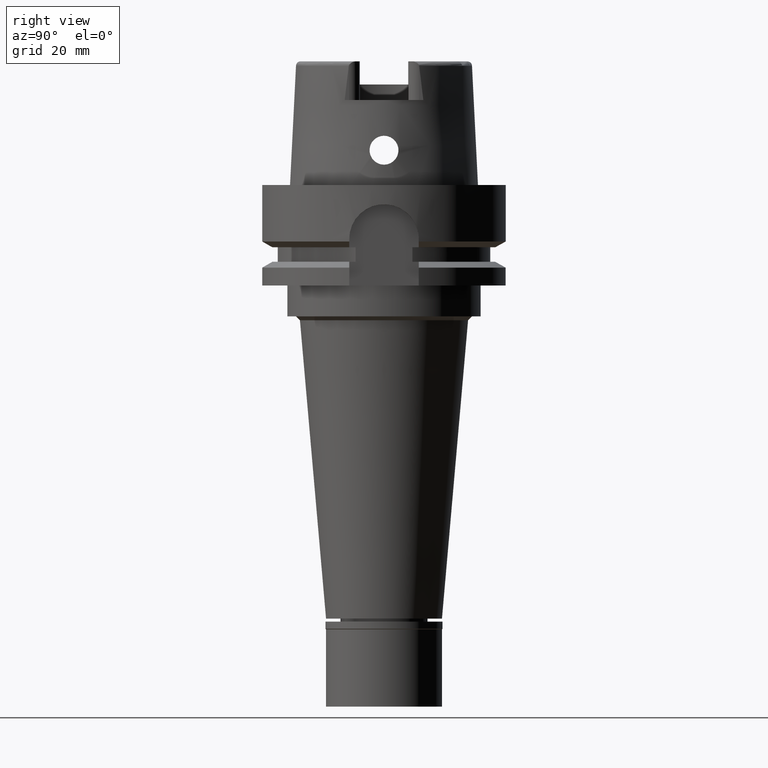
[diagram: clean part render]
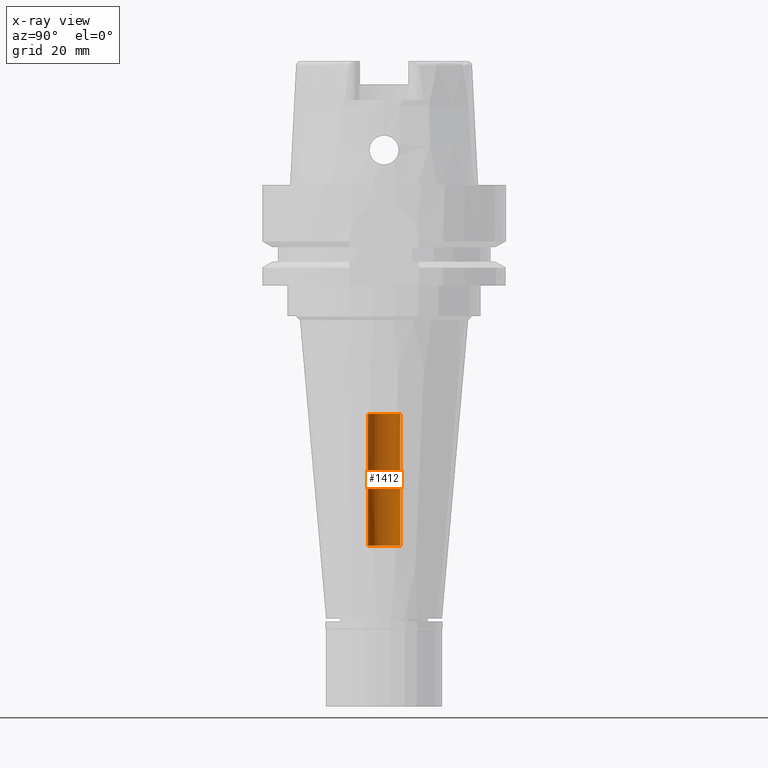
[diagram: x-ray — body ghosted, one internal face saturated and labeled with its STEP entity id]
A machine part, right view, then the same camera in x-ray: the body is ghosted and one INTERNAL B-rep face — a face not visible from any outside direction — is saturated and labeled: STEP entity #1412.
In plain terms, the highlighted cylindrical surface (edge-blend (fillet) strip) has radius 4.2 mm, axis along (0, 0, 1).
Its self-contained STEP definition (entity closure, byte-faithful):
#47 = EDGE_CURVE ( 'NONE', #3217, #886, #5383, .T. ) ;
#401 = DIRECTION ( 'NONE',  ( 0.0000000000000000000, 1.000000000000000000, 0.0000000000000000000 ) ) ;
#461 = DIRECTION ( 'NONE',  ( 0.0000000000000000000, 0.0000000000000000000, 1.000000000000000000 ) ) ;
#659 = DIRECTION ( 'NONE',  ( 0.0000000000000000000, 0.0000000000000000000, -1.000000000000000000 ) ) ;
#770 = CARTESIAN_POINT ( 'NONE',  ( 0.0000000000000000000, 0.0000000000000000000, -93.29999999999999716 ) ) ;
#799 = CARTESIAN_POINT ( 'NONE',  ( 0.0000000000000000000, 4.200000000000000178, -59.25000000000000000 ) ) ;
#886 = VERTEX_POINT ( 'NONE', #3995 ) ;
#1019 = AXIS2_PLACEMENT_3D ( 'NONE', #770, #659, #3584 ) ;
#1192 = VERTEX_POINT ( 'NONE', #2012 ) ;
#1320 = DIRECTION ( 'NONE',  ( 0.0000000000000000000, 1.000000000000000000, 0.0000000000000000000 ) ) ;
#1362 = VERTEX_POINT ( 'NONE', #2447 ) ;
#1410 = ORIENTED_EDGE ( 'NONE', *, *, #3713, .T. ) ;
#1412 = ADVANCED_FACE ( 'NONE', ( #5453 ), #3316, .F. ) ;
#1434 = VECTOR ( 'NONE', #3559, 1000.000000000000000 ) ;
#1479 = ORIENTED_EDGE ( 'NONE', *, *, #47, .T. ) ;
#2012 = CARTESIAN_POINT ( 'NONE',  ( 0.0000000000000000000, -4.200000000000000178, -93.29999999999999716 ) ) ;
#2196 = ORIENTED_EDGE ( 'NONE', *, *, #3081, .F. ) ;
#2447 = CARTESIAN_POINT ( 'NONE',  ( 0.0000000000000000000, 4.200000000000000178, -93.29999999999999716 ) ) ;
#3081 = EDGE_CURVE ( 'NONE', #1192, #886, #4842, .T. ) ;
#3217 = VERTEX_POINT ( 'NONE', #799 ) ;
#3316 = CYLINDRICAL_SURFACE ( 'NONE', #4476, 4.200000000000000178 ) ;
#3559 = DIRECTION ( 'NONE',  ( 0.0000000000000000000, 0.0000000000000000000, 1.000000000000000000 ) ) ;
#3584 = DIRECTION ( 'NONE',  ( 0.0000000000000000000, -1.000000000000000000, 0.0000000000000000000 ) ) ;
#3713 = EDGE_CURVE ( 'NONE', #1362, #3217, #4672, .T. ) ;
#3814 = CARTESIAN_POINT ( 'NONE',  ( 0.0000000000000000000, 4.200000000000000178, -93.29999999999999716 ) ) ;
#3838 = DIRECTION ( 'NONE',  ( 0.0000000000000000000, 0.0000000000000000000, 1.000000000000000000 ) ) ;
#3904 = CIRCLE ( 'NONE', #1019, 4.200000000000000178 ) ;
#3995 = CARTESIAN_POINT ( 'NONE',  ( 0.0000000000000000000, -4.200000000000000178, -59.25000000000000000 ) ) ;
#4045 = AXIS2_PLACEMENT_3D ( 'NONE', #4340, #3838, #1320 ) ;
#4340 = CARTESIAN_POINT ( 'NONE',  ( 0.0000000000000000000, 0.0000000000000000000, -59.25000000000000000 ) ) ;
#4380 = CARTESIAN_POINT ( 'NONE',  ( 0.0000000000000000000, -4.200000000000000178, -93.29999999999999716 ) ) ;
#4476 = AXIS2_PLACEMENT_3D ( 'NONE', #4674, #461, #401 ) ;
#4614 = VECTOR ( 'NONE', #5118, 1000.000000000000000 ) ;
#4672 = LINE ( 'NONE', #3814, #4614 ) ;
#4674 = CARTESIAN_POINT ( 'NONE',  ( 0.0000000000000000000, 0.0000000000000000000, 0.0000000000000000000 ) ) ;
#4688 = EDGE_CURVE ( 'NONE', #1192, #1362, #3904, .T. ) ;
#4842 = LINE ( 'NONE', #4380, #1434 ) ;
#4926 = EDGE_LOOP ( 'NONE', ( #1479, #2196, #5036, #1410 ) ) ;
#5036 = ORIENTED_EDGE ( 'NONE', *, *, #4688, .T. ) ;
#5118 = DIRECTION ( 'NONE',  ( 0.0000000000000000000, 0.0000000000000000000, 1.000000000000000000 ) ) ;
#5383 = CIRCLE ( 'NONE', #4045, 4.200000000000000178 ) ;
#5453 = FACE_OUTER_BOUND ( 'NONE', #4926, .T. ) ;